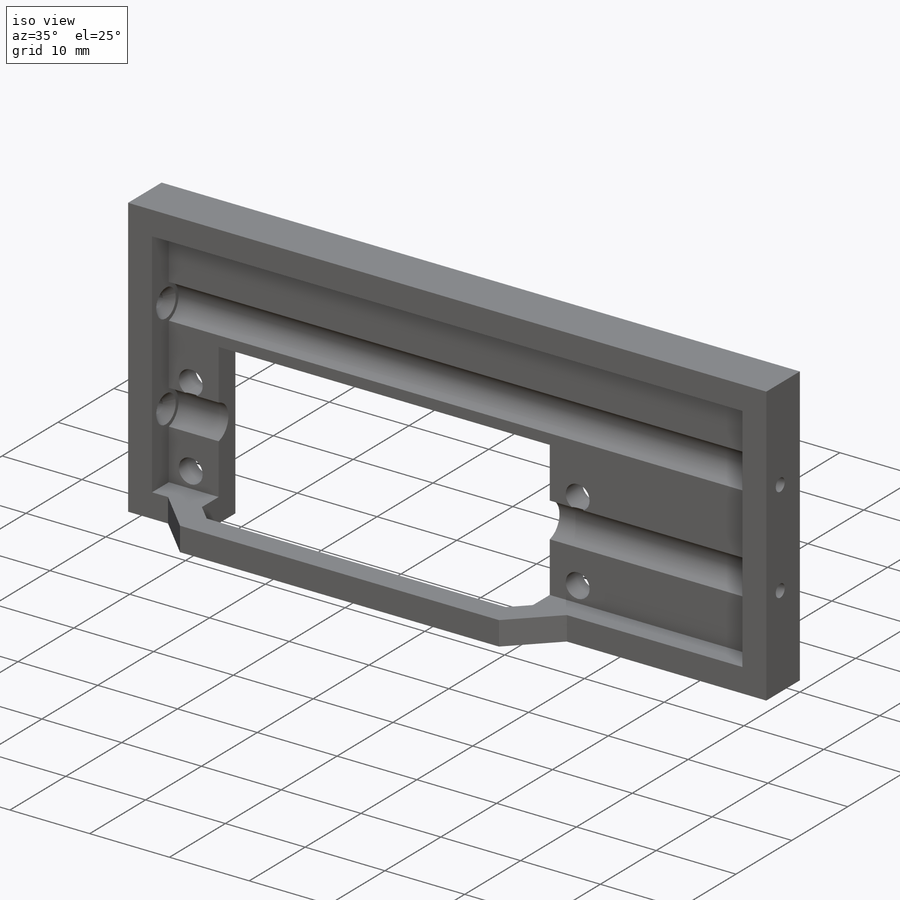
[diagram: iso view]
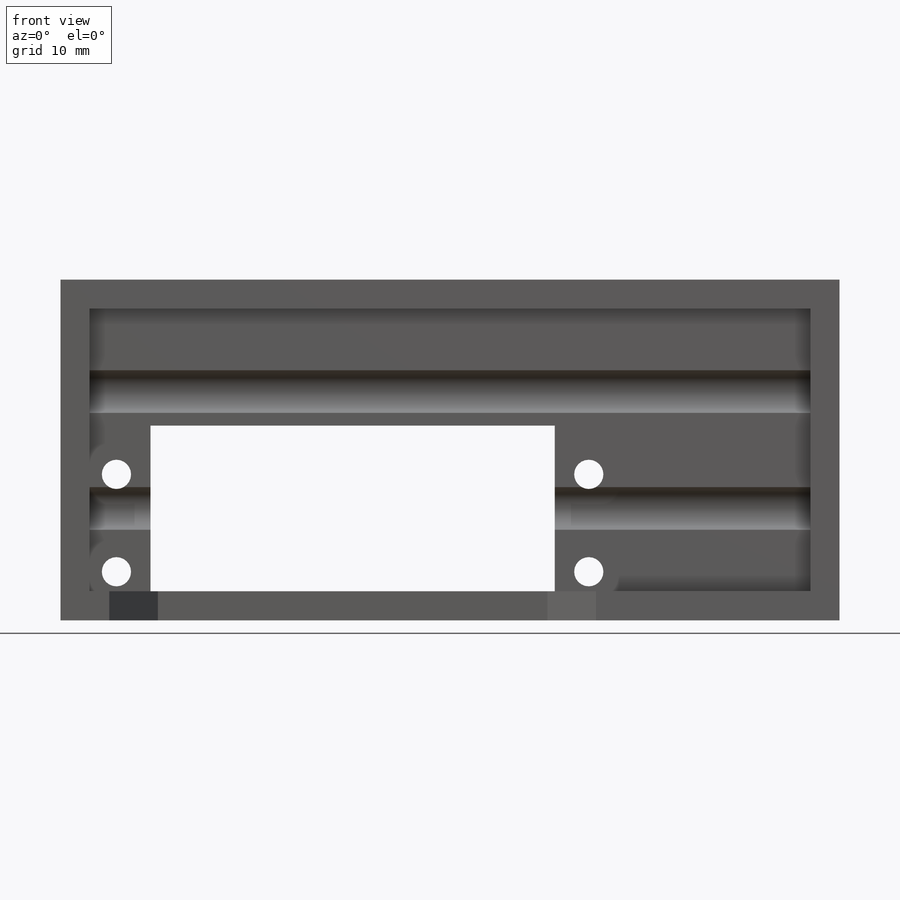
[diagram: front view]
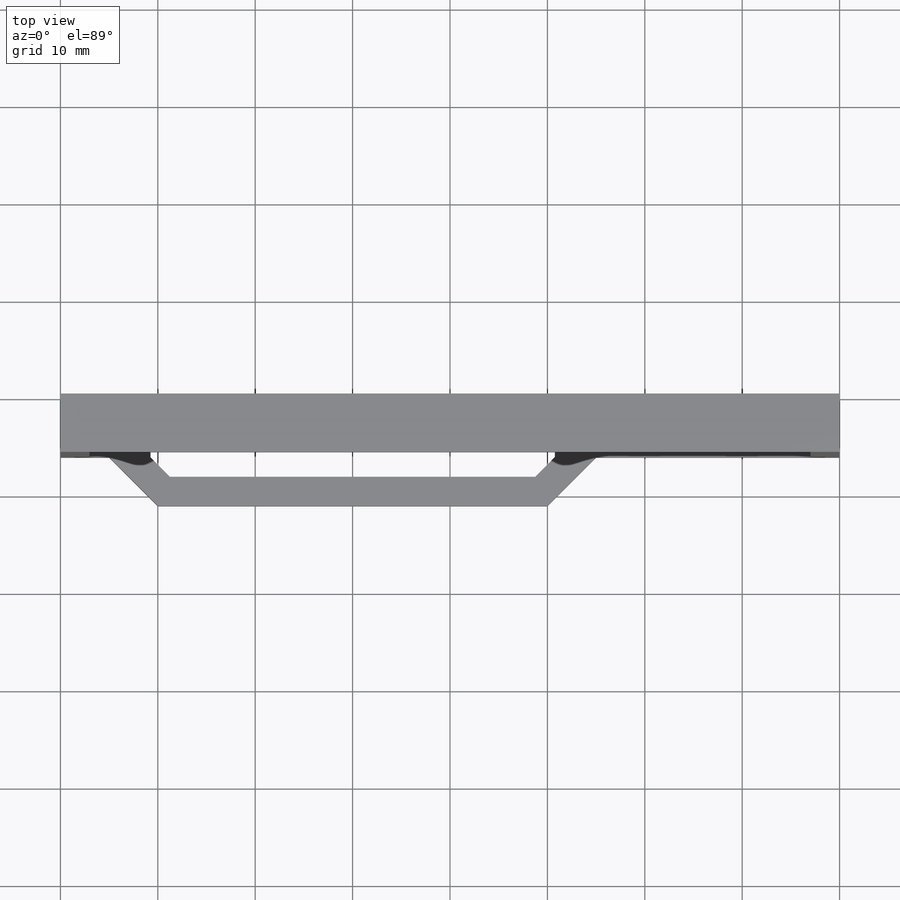
[diagram: top view]
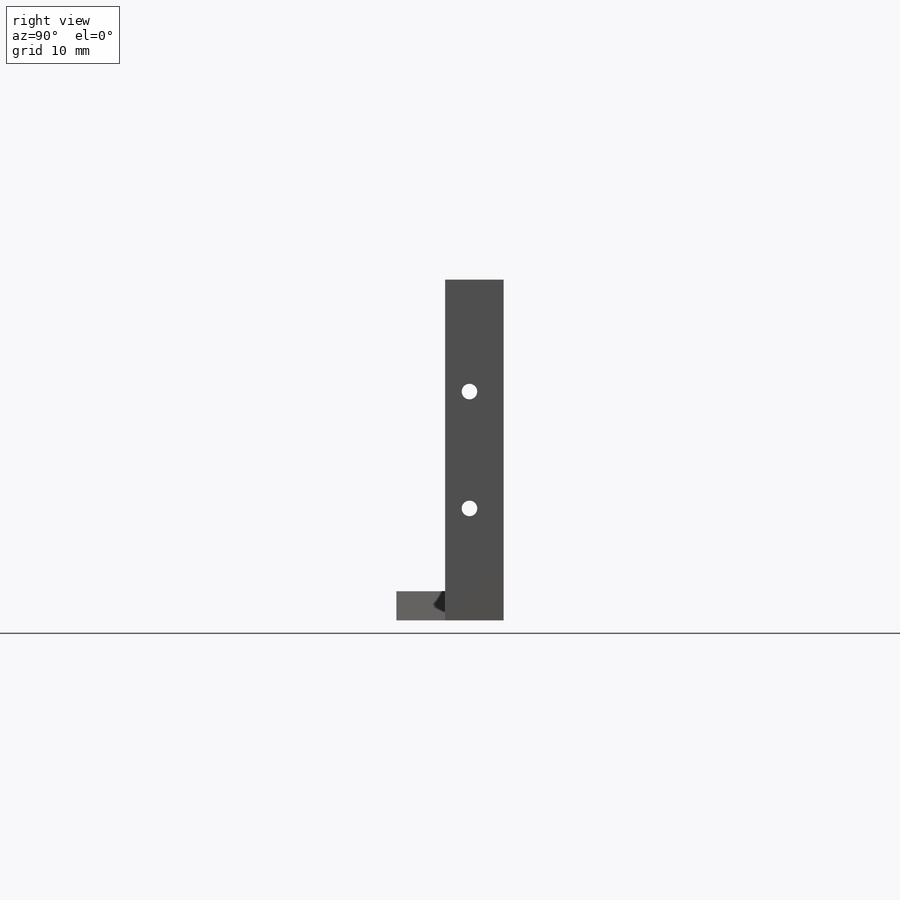
[diagram: right view]
SOLIDWORKS PART (.sldprt)
format: sldprt  version: not decoded by parser v0  size: 306,176 bytes
history: native  units: mm
features: sketch x7, plane x3, extrude x3, cut_extrude x2, material x1, hole x1, mirror x1 (+9 scaffold rows collapsed)
feature tree (27):
  scaffold x9  (default folders/planes/origin — collapsed)
  material  "PVC hart"
  plane  "Ebene vorne"
  plane  "Ebene oben"
  plane  "Ebene rechts"
  sketch  "Skizze2"  dims[D1=6.0mm D2=3.0mm D3=3.0mm D4=80.0mm]
  extrude  "Aufsatz-Linear austragen2"  Depth=35mm
  sketch  "Skizze3"  dims[D2=3.0mm D1=10.0mm D3=48.5mm D4=41.5mm D5=20.0mm D6=14.25mm]
  cut_extrude  "Schnitt-Linear austragen1"  [1 undecoded]
  sketch  "Skizze4"
  extrude  "Aufsatz-Linear austragen3"  [1 undecoded]
  sketch  "Skizze5"  dims[c1.D1=~3.603246mm c2.D1=135.0deg c2.D2=3.0mm c2.D3=3.0mm c2.D4=~8.091319mm c3.D3=5.0mm]
  extrude  "Aufsatz-Linear austragen4"  Depth=3mm
  hole  "Formsenkung für M3 Senkschraube mit Innensechskant1"  Diameter=1.6mm Depth=3mm
  sketch  "Skizze7"  dims[D1=12.0mm D2=2.5mm]
  sketch  "Skizze6"  dims[hole-wizard template sketch: 54 standard entries collapsed; hole parameters kept: c17.Bohrerdurchmesser=1.6mm c17.Bohrungstiefe=3.0mm c17.Senkdurchmesser (Oben)=3.5mm c17.D4=~3.666174mm c17.Senkwinkel (Oben)=90.0deg]
  sketch  "Skizze8"  dims[D1=0.5mm]
  cut_extrude  "Schnitt-Linear austragen2"  [1 undecoded]
  mirror  "Spiegeln2"
decode coverage: 9 of 14 modeling features carry decoded parameters
note: ~ marks probable driven/reference dimensions
note: 3 parameter values undecoded
summary: no parameter record found for 3 features
note: suppression state not decoded; provenance and decode notes live in map.json
